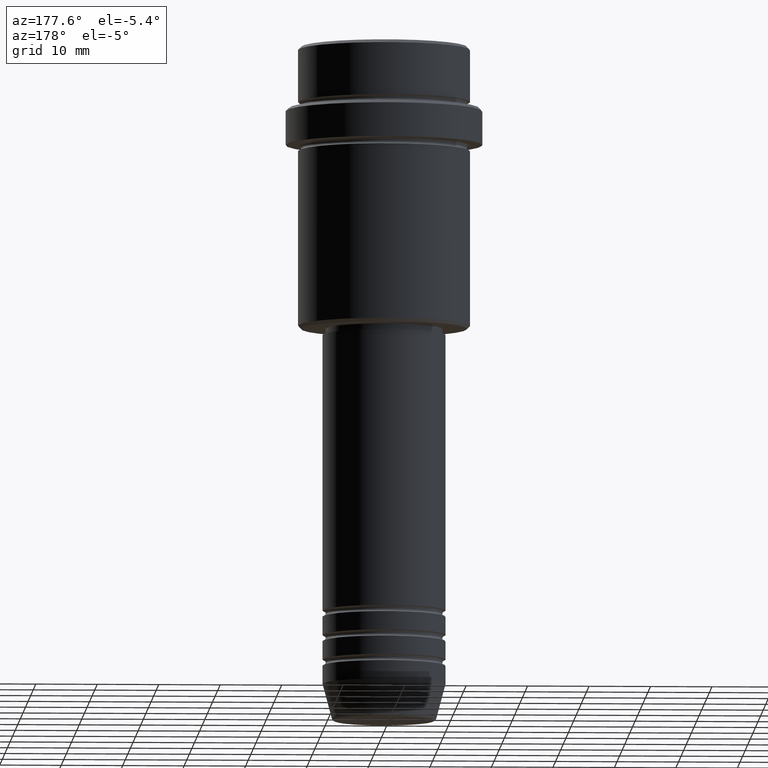
[diagram: clean part render]
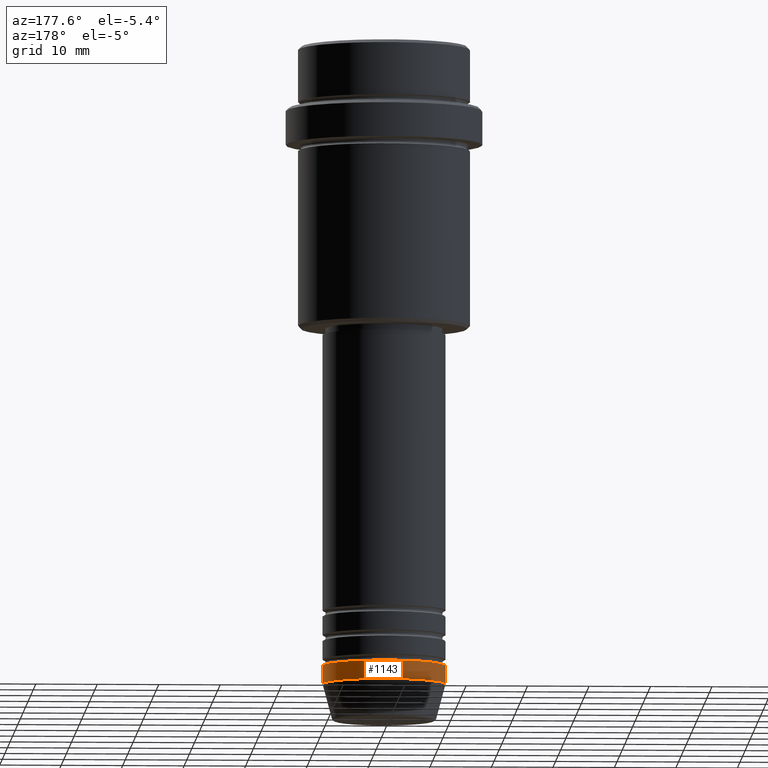
[diagram: same view with one face highlighted and labeled with its STEP entity id]
A machine part, auxiliary view. The second image highlights one B-rep face of the part: STEP entity #1143.
In plain terms, the highlighted cylindrical surface (partial cylindrical patch) has radius 10 mm, axis along (-0, -0, 1).
Its self-contained STEP definition (entity closure, byte-faithful):
#91 = EDGE_LOOP ( 'NONE', ( #1404, #238, #925, #345 ) ) ;
#94 = EDGE_CURVE ( 'NONE', #1385, #138, #1260, .T. ) ;
#101 = DIRECTION ( 'NONE',  ( -0.000000000000000000, -0.000000000000000000, 1.000000000000000000 ) ) ;
#103 = CARTESIAN_POINT ( 'NONE',  ( 10.00000000000000000, 0.000000000000000000, -101.0000000000000000 ) ) ;
#138 = VERTEX_POINT ( 'NONE', #454 ) ;
#187 = AXIS2_PLACEMENT_3D ( 'NONE', #1186, #101, #1171 ) ;
#238 = ORIENTED_EDGE ( 'NONE', *, *, #1291, .T. ) ;
#248 = EDGE_CURVE ( 'NONE', #572, #965, #485, .T. ) ;
#284 = VECTOR ( 'NONE', #990, 1000.000000000000000 ) ;
#310 = CYLINDRICAL_SURFACE ( 'NONE', #187, 10.00000000000000000 ) ;
#331 = FACE_OUTER_BOUND ( 'NONE', #91, .T. ) ;
#345 = ORIENTED_EDGE ( 'NONE', *, *, #482, .F. ) ;
#394 = DIRECTION ( 'NONE',  ( 1.000000000000000000, 0.000000000000000000, 0.000000000000000000 ) ) ;
#454 = CARTESIAN_POINT ( 'NONE',  ( -10.00000000000000000, 1.224646799147353256E-15, -101.0000000000000000 ) ) ;
#470 = DIRECTION ( 'NONE',  ( -0.000000000000000000, -0.000000000000000000, 1.000000000000000000 ) ) ;
#478 = LINE ( 'NONE', #885, #1301 ) ;
#482 = EDGE_CURVE ( 'NONE', #572, #1385, #478, .T. ) ;
#485 = CIRCLE ( 'NONE', #574, 10.00000000000000000 ) ;
#560 = DIRECTION ( 'NONE',  ( -0.000000000000000000, -0.000000000000000000, 1.000000000000000000 ) ) ;
#568 = CARTESIAN_POINT ( 'NONE',  ( 0.000000000000000000, 0.000000000000000000, -101.0000000000000000 ) ) ;
#572 = VERTEX_POINT ( 'NONE', #809 ) ;
#574 = AXIS2_PLACEMENT_3D ( 'NONE', #737, #617, #394 ) ;
#617 = DIRECTION ( 'NONE',  ( -0.000000000000000000, -0.000000000000000000, 1.000000000000000000 ) ) ;
#639 = CARTESIAN_POINT ( 'NONE',  ( -10.00000000000000000, 1.224646799147353256E-15, -104.0000000000000142 ) ) ;
#664 = LINE ( 'NONE', #1100, #284 ) ;
#737 = CARTESIAN_POINT ( 'NONE',  ( 0.000000000000000000, 0.000000000000000000, -104.0000000000000142 ) ) ;
#793 = DIRECTION ( 'NONE',  ( 1.000000000000000000, 0.000000000000000000, 0.000000000000000000 ) ) ;
#809 = CARTESIAN_POINT ( 'NONE',  ( 10.00000000000000000, 0.000000000000000000, -104.0000000000000142 ) ) ;
#885 = CARTESIAN_POINT ( 'NONE',  ( 10.00000000000000000, 0.000000000000000000, 0.000000000000000000 ) ) ;
#891 = AXIS2_PLACEMENT_3D ( 'NONE', #568, #560, #793 ) ;
#925 = ORIENTED_EDGE ( 'NONE', *, *, #94, .F. ) ;
#965 = VERTEX_POINT ( 'NONE', #639 ) ;
#990 = DIRECTION ( 'NONE',  ( -0.000000000000000000, -0.000000000000000000, 1.000000000000000000 ) ) ;
#1100 = CARTESIAN_POINT ( 'NONE',  ( -10.00000000000000000, 1.224646799147353256E-15, 0.000000000000000000 ) ) ;
#1143 = ADVANCED_FACE ( 'NONE', ( #331 ), #310, .T. ) ;
#1171 = DIRECTION ( 'NONE',  ( 1.000000000000000000, 0.000000000000000000, 0.000000000000000000 ) ) ;
#1186 = CARTESIAN_POINT ( 'NONE',  ( 0.000000000000000000, 0.000000000000000000, 0.000000000000000000 ) ) ;
#1260 = CIRCLE ( 'NONE', #891, 10.00000000000000000 ) ;
#1291 = EDGE_CURVE ( 'NONE', #965, #138, #664, .T. ) ;
#1301 = VECTOR ( 'NONE', #470, 1000.000000000000000 ) ;
#1385 = VERTEX_POINT ( 'NONE', #103 ) ;
#1404 = ORIENTED_EDGE ( 'NONE', *, *, #248, .T. ) ;